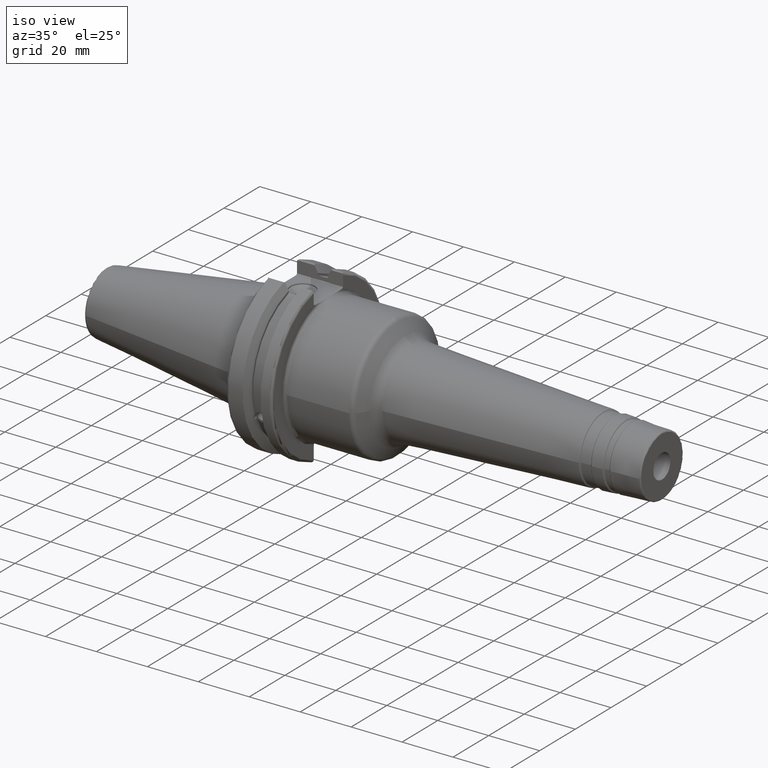
[diagram: clean part render]
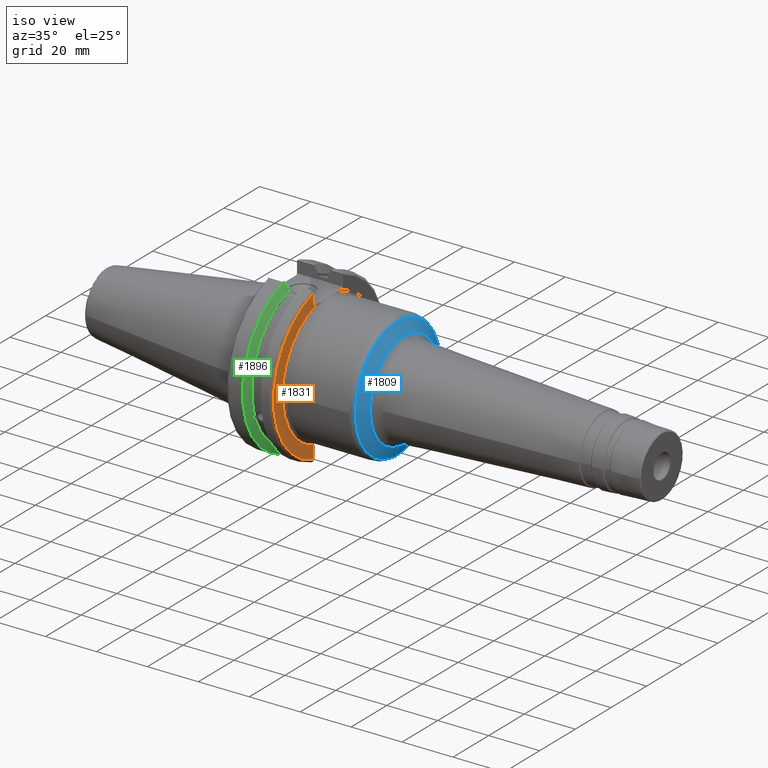
[diagram: same view with three faces highlighted in distinct colors, each labeled with its STEP entity id]
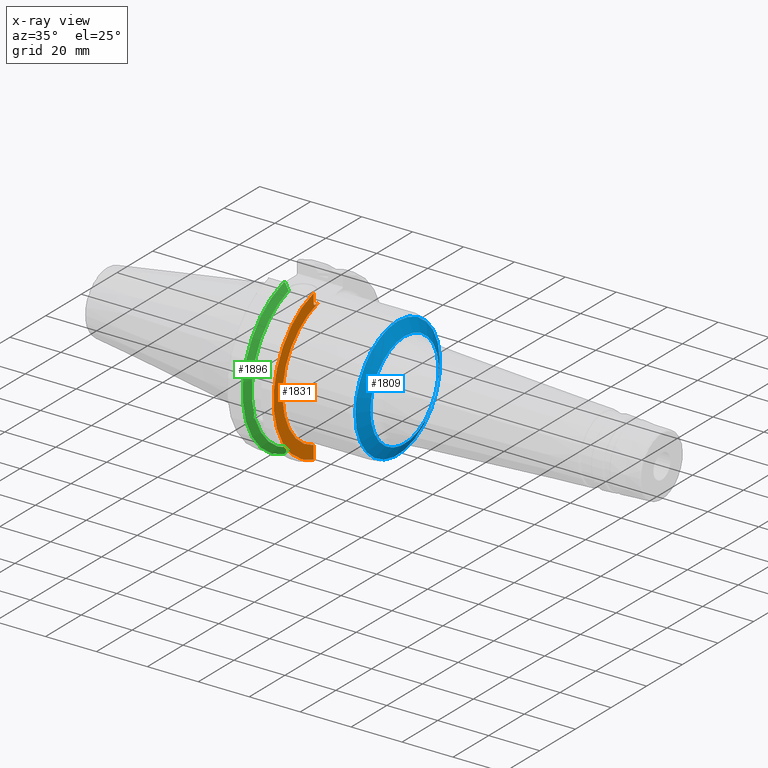
[diagram: x-ray of the same camera — body ghosted, the three highlighted faces saturated]
A machine part, iso view with three faces highlighted in distinct colors.
The next image is the same camera in x-ray (body ghosted, the three faces saturated) — at least one of them is partly hidden behind the body in this view.
Their STEP definitions:

[orange] entity #1831 — the highlighted planar face has unit normal (1, 0, 0).
#50=PLANE('',#2024);
#211=FACE_OUTER_BOUND('',#319,.T.);
#319=EDGE_LOOP('',(#1366,#1367,#1368,#1369,#1370,#1371));
#424=LINE('',#3061,#520);
#425=LINE('',#3063,#521);
#426=LINE('',#3065,#522);
#427=LINE('',#3068,#523);
#520=VECTOR('',#2383,10.);
#521=VECTOR('',#2384,10.);
#522=VECTOR('',#2385,10.);
#523=VECTOR('',#2388,10.);
#663=CIRCLE('',#2022,25.75);
#665=CIRCLE('',#2025,30.75);
#781=VERTEX_POINT('',#3023);
#783=VERTEX_POINT('',#3035);
#785=VERTEX_POINT('',#3060);
#786=VERTEX_POINT('',#3062);
#787=VERTEX_POINT('',#3064);
#788=VERTEX_POINT('',#3066);
#999=EDGE_CURVE('',#781,#783,#663,.T.);
#1003=EDGE_CURVE('',#781,#785,#424,.T.);
#1004=EDGE_CURVE('',#786,#785,#425,.T.);
#1005=EDGE_CURVE('',#786,#787,#426,.T.);
#1006=EDGE_CURVE('',#788,#787,#665,.T.);
#1007=EDGE_CURVE('',#788,#783,#427,.T.);
#1366=ORIENTED_EDGE('',*,*,#999,.F.);
#1367=ORIENTED_EDGE('',*,*,#1003,.T.);
#1368=ORIENTED_EDGE('',*,*,#1004,.F.);
#1369=ORIENTED_EDGE('',*,*,#1005,.T.);
#1370=ORIENTED_EDGE('',*,*,#1006,.F.);
#1371=ORIENTED_EDGE('',*,*,#1007,.T.);
#1831=ADVANCED_FACE('',(#211),#50,.T.);
#2022=AXIS2_PLACEMENT_3D('',#3036,#2377,#2378);
#2024=AXIS2_PLACEMENT_3D('',#3059,#2381,#2382);
#2025=AXIS2_PLACEMENT_3D('',#3067,#2386,#2387);
#2377=DIRECTION('center_axis',(1.,0.,0.));
#2378=DIRECTION('ref_axis',(0.,6.12323399573677E-17,1.));
#2381=DIRECTION('center_axis',(1.,0.,0.));
#2382=DIRECTION('ref_axis',(0.,0.,-1.));
#2383=DIRECTION('',(0.,-1.,0.));
#2384=DIRECTION('',(0.,0.70710678118655,-0.707106781186545));
#2385=DIRECTION('',(0.,0.,1.));
#2386=DIRECTION('center_axis',(-1.,0.,0.));
#2387=DIRECTION('ref_axis',(0.,-1.,1.60812264967664E-16));
#2388=DIRECTION('',(0.,0.,1.));
#3023=CARTESIAN_POINT('',(19.05,-6.16948133962654,25.));
#3035=CARTESIAN_POINT('',(19.05,-8.19,-24.4128326910254));
#3036=CARTESIAN_POINT('Origin',(19.05,0.,0.));
#3059=CARTESIAN_POINT('Origin',(19.05,0.,0.));
#3060=CARTESIAN_POINT('',(19.05,-7.69,25.));
#3061=CARTESIAN_POINT('',(19.05,0.,25.));
#3062=CARTESIAN_POINT('',(19.05,-8.19,25.5));
#3063=CARTESIAN_POINT('',(19.05,0.357500000000014,16.9525));
#3064=CARTESIAN_POINT('',(19.05,-8.19,29.6392712461019));
#3065=CARTESIAN_POINT('',(19.05,-8.19,12.5));
#3066=CARTESIAN_POINT('',(19.05,-8.19,-29.6392712461019));
#3067=CARTESIAN_POINT('Origin',(19.05,0.,0.));
#3068=CARTESIAN_POINT('',(19.05,-8.19,-11.3));

[blue] entity #1809 — the highlighted conical surface has half-angle 60 deg.
#189=FACE_OUTER_BOUND('',#296,.T.);
#296=EDGE_LOOP('',(#1238,#1239,#1240,#1241,#1242,#1243));
#414=LINE('',#2905,#510);
#510=VECTOR('',#2227,20.9953889641521);
#610=CIRCLE('',#1947,23.75);
#611=CIRCLE('',#1948,23.75);
#613=CIRCLE('',#1951,19.1216316443699);
#614=CIRCLE('',#1952,19.1216316443699);
#739=VERTEX_POINT('',#2896);
#740=VERTEX_POINT('',#2897);
#741=VERTEX_POINT('',#2902);
#742=VERTEX_POINT('',#2903);
#935=EDGE_CURVE('',#739,#740,#610,.T.);
#936=EDGE_CURVE('',#740,#739,#611,.T.);
#938=EDGE_CURVE('',#741,#742,#613,.T.);
#939=EDGE_CURVE('',#741,#740,#414,.T.);
#940=EDGE_CURVE('',#742,#741,#614,.T.);
#1238=ORIENTED_EDGE('',*,*,#938,.F.);
#1239=ORIENTED_EDGE('',*,*,#939,.T.);
#1240=ORIENTED_EDGE('',*,*,#935,.F.);
#1241=ORIENTED_EDGE('',*,*,#936,.F.);
#1242=ORIENTED_EDGE('',*,*,#939,.F.);
#1243=ORIENTED_EDGE('',*,*,#940,.F.);
#1782=CONICAL_SURFACE('',#1950,20.995388964152,1.0471975511966);
#1809=ADVANCED_FACE('',(#189),#1782,.T.);
#1947=AXIS2_PLACEMENT_3D('',#2898,#2217,#2218);
#1948=AXIS2_PLACEMENT_3D('',#2899,#2219,#2220);
#1950=AXIS2_PLACEMENT_3D('',#2901,#2223,#2224);
#1951=AXIS2_PLACEMENT_3D('',#2904,#2225,#2226);
#1952=AXIS2_PLACEMENT_3D('',#2906,#2228,#2229);
#2217=DIRECTION('center_axis',(-1.,0.,0.));
#2218=DIRECTION('ref_axis',(0.,-1.,3.06161699786838E-17));
#2219=DIRECTION('center_axis',(-1.,0.,0.));
#2220=DIRECTION('ref_axis',(0.,-1.,3.06161699786838E-17));
#2223=DIRECTION('center_axis',(-1.,0.,0.));
#2224=DIRECTION('ref_axis',(0.,1.,0.));
#2225=DIRECTION('center_axis',(1.,0.,0.));
#2226=DIRECTION('ref_axis',(0.,-1.,3.06161699786838E-17));
#2227=DIRECTION('',(-0.5,-0.866025403784438,-1.06057523872491E-16));
#2228=DIRECTION('center_axis',(1.,0.,0.));
#2229=DIRECTION('ref_axis',(0.,-1.,3.06161699786838E-17));
#2896=CARTESIAN_POINT('',(46.2418988846913,-2.90853614797496E-15,23.75));
#2897=CARTESIAN_POINT('',(46.2418988846913,-23.75,-2.90853614797496E-15));
#2898=CARTESIAN_POINT('Origin',(46.2418988846913,0.,-3.6356701849687E-15));
#2899=CARTESIAN_POINT('Origin',(46.2418988846913,0.,-3.6356701849687E-15));
#2901=CARTESIAN_POINT('Origin',(47.8322743077508,0.,0.));
#2902=CARTESIAN_POINT('',(48.9140886007231,-19.1216316443699,-2.34172449877523E-15));
#2903=CARTESIAN_POINT('',(48.9140886007231,-2.34172449877523E-15,19.1216316443699));
#2904=CARTESIAN_POINT('Origin',(48.9140886007231,0.,-2.92715562346904E-15));
#2905=CARTESIAN_POINT('',(47.8322743077508,-20.995388964152,-2.57119358918025E-15));
#2906=CARTESIAN_POINT('Origin',(48.9140886007231,0.,-2.92715562346904E-15));

[green] entity #1896 — the highlighted conical surface has half-angle 60 deg.
#24=(
BOUNDED_CURVE()
B_SPLINE_CURVE(2,(#3567,#3568,#3569),.UNSPECIFIED.,.F.,.F.)
B_SPLINE_CURVE_WITH_KNOTS((3,3),(0.,0.276549142797088),.UNSPECIFIED.)
CURVE()
GEOMETRIC_REPRESENTATION_ITEM()
RATIONAL_B_SPLINE_CURVE((1.,1.00095203903867,1.00031614444995))
REPRESENTATION_ITEM('')
);
#25=(
BOUNDED_CURVE()
B_SPLINE_CURVE(2,(#3579,#3580,#3581),.UNSPECIFIED.,.F.,.F.)
B_SPLINE_CURVE_WITH_KNOTS((3,3),(0.0550586467393311,0.331607789535851),
 .UNSPECIFIED.)
CURVE()
GEOMETRIC_REPRESENTATION_ITEM()
RATIONAL_B_SPLINE_CURVE((1.00031614445049,1.00095203904028,1.))
REPRESENTATION_ITEM('')
);
#26=(
BOUNDED_CURVE()
B_SPLINE_CURVE(2,(#3614,#3615,#3616),.UNSPECIFIED.,.F.,.F.)
B_SPLINE_CURVE_WITH_KNOTS((3,3),(0.,0.0639048713675838),.UNSPECIFIED.)
CURVE()
GEOMETRIC_REPRESENTATION_ITEM()
RATIONAL_B_SPLINE_CURVE((1.,1.00028444218292,1.00047644010588))
REPRESENTATION_ITEM('')
);
#27=(
BOUNDED_CURVE()
B_SPLINE_CURVE(2,(#3622,#3623,#3624),.UNSPECIFIED.,.F.,.F.)
B_SPLINE_CURVE_WITH_KNOTS((3,3),(0.329353533631213,0.393258405001024),
 .UNSPECIFIED.)
CURVE()
GEOMETRIC_REPRESENTATION_ITEM()
RATIONAL_B_SPLINE_CURVE((1.00047644010576,1.00028444218285,1.))
REPRESENTATION_ITEM('')
);
#129=B_SPLINE_CURVE_WITH_KNOTS('',3,(#3165,#3166,#3167,#3168,#3169,#3170,
#3171,#3172,#3173,#3174,#3175,#3176,#3177,#3178),.UNSPECIFIED.,.F.,.F.,
(4,2,2,2,2,2,4),(0.451995700189025,0.464547828547662,0.504528771685168,
0.544509714822673,0.584490657960178,0.624471601097683,0.637023729456319),
 .UNSPECIFIED.);
#276=FACE_OUTER_BOUND('',#394,.T.);
#394=EDGE_LOOP('',(#1728,#1729,#1730,#1731,#1732,#1733,#1734,#1735));
#681=CIRCLE('',#2068,28.9593772964944);
#704=CIRCLE('',#2126,31.75);
#716=CIRCLE('',#2159,28.9593772964944);
#809=VERTEX_POINT('',#3162);
#810=VERTEX_POINT('',#3164);
#827=VERTEX_POINT('',#3257);
#888=VERTEX_POINT('',#3564);
#889=VERTEX_POINT('',#3566);
#892=VERTEX_POINT('',#3578);
#896=VERTEX_POINT('',#3612);
#897=VERTEX_POINT('',#3618);
#1036=EDGE_CURVE('',#810,#809,#129,.T.);
#1060=EDGE_CURVE('',#810,#827,#681,.T.);
#1145=EDGE_CURVE('',#889,#888,#24,.T.);
#1151=EDGE_CURVE('',#892,#827,#25,.T.);
#1159=EDGE_CURVE('',#896,#888,#26,.T.);
#1161=EDGE_CURVE('',#896,#897,#704,.T.);
#1162=EDGE_CURVE('',#892,#897,#27,.T.);
#1193=EDGE_CURVE('',#889,#809,#716,.T.);
#1728=ORIENTED_EDGE('',*,*,#1036,.T.);
#1729=ORIENTED_EDGE('',*,*,#1193,.F.);
#1730=ORIENTED_EDGE('',*,*,#1145,.T.);
#1731=ORIENTED_EDGE('',*,*,#1159,.F.);
#1732=ORIENTED_EDGE('',*,*,#1161,.T.);
#1733=ORIENTED_EDGE('',*,*,#1162,.F.);
#1734=ORIENTED_EDGE('',*,*,#1151,.T.);
#1735=ORIENTED_EDGE('',*,*,#1060,.F.);
#1800=CONICAL_SURFACE('',#2158,30.3546886482472,1.0471975511966);
#1896=ADVANCED_FACE('',(#276),#1800,.T.);
#2068=AXIS2_PLACEMENT_3D('',#3258,#2491,#2492);
#2126=AXIS2_PLACEMENT_3D('',#3620,#2649,#2650);
#2158=AXIS2_PLACEMENT_3D('',#3713,#2726,#2727);
#2159=AXIS2_PLACEMENT_3D('',#3714,#2728,#2729);
#2491=DIRECTION('center_axis',(1.,0.,0.));
#2492=DIRECTION('ref_axis',(0.,0.,-1.));
#2649=DIRECTION('center_axis',(1.,0.,0.));
#2650=DIRECTION('ref_axis',(0.,0.,-1.));
#2726=DIRECTION('center_axis',(-1.,0.,0.));
#2727=DIRECTION('ref_axis',(0.,-1.,-1.22464679914735E-16));
#2728=DIRECTION('center_axis',(1.,0.,0.));
#2729=DIRECTION('ref_axis',(0.,0.,-1.));
#3162=CARTESIAN_POINT('',(9.2191,-27.4956274489925,-9.09043478536247));
#3164=CARTESIAN_POINT('',(9.21909999999999,-26.9060914640648,-10.7101715919071));
#3165=CARTESIAN_POINT('Ctrl Pts',(9.21909999999999,-26.9060914640648,-10.7101715919071));
#3166=CARTESIAN_POINT('Ctrl Pts',(9.20497959280038,-26.9406927482839,-10.6893765730703));
#3167=CARTESIAN_POINT('Ctrl Pts',(9.19150701821433,-26.9744191989197,-10.6676007180673));
#3168=CARTESIAN_POINT('Ctrl Pts',(9.13811855884095,-27.1113422433188,-10.5723885976054));
#3169=CARTESIAN_POINT('Ctrl Pts',(9.09998029158246,-27.2180531796526,-10.4801333026531));
#3170=CARTESIAN_POINT('Ctrl Pts',(9.04778935539424,-27.3968610665578,-10.2639559818059));
#3171=CARTESIAN_POINT('Ctrl Pts',(9.0341,-27.4684373304961,-10.139516340139));
#3172=CARTESIAN_POINT('Ctrl Pts',(9.0341,-27.559599249844,-9.8890510252165));
#3173=CARTESIAN_POINT('Ctrl Pts',(9.04778935539424,-27.5847569104121,-9.74771639360671));
#3174=CARTESIAN_POINT('Ctrl Pts',(9.09998029158246,-27.5867382255984,-9.46717946402648));
#3175=CARTESIAN_POINT('Ctrl Pts',(9.13811855884095,-27.5642934663232,-9.32791534028655));
#3176=CARTESIAN_POINT('Ctrl Pts',(9.19150701821433,-27.5206055003512,-9.16696618806878));
#3177=CARTESIAN_POINT('Ctrl Pts',(9.20497959280038,-27.5087667900418,-9.12860597076219));
#3178=CARTESIAN_POINT('Ctrl Pts',(9.21909999999999,-27.4956274489925,-9.09043478536247));
#3257=CARTESIAN_POINT('',(9.2191,-8.19,-27.7771386827498));
#3258=CARTESIAN_POINT('Origin',(9.2191,0.,0.));
#3564=CARTESIAN_POINT('',(7.88668530351255,-8.19,30.1755016258903));
#3566=CARTESIAN_POINT('',(9.2191,-8.19,27.7771386827498));
#3567=CARTESIAN_POINT('Ctrl Pts',(9.2191,-8.19,27.7771386827498));
#3568=CARTESIAN_POINT('Ctrl Pts',(8.58046356153227,-8.19,28.9303689539555));
#3569=CARTESIAN_POINT('Ctrl Pts',(7.88668530351255,-8.19,30.1755016258903));
#3578=CARTESIAN_POINT('',(7.88668530351256,-8.19,-30.1755016258903));
#3579=CARTESIAN_POINT('Ctrl Pts',(7.88668530351256,-8.19,-30.1755016258903));
#3580=CARTESIAN_POINT('Ctrl Pts',(8.5804635615239,-8.19,-28.9303689539705));
#3581=CARTESIAN_POINT('Ctrl Pts',(9.2191,-8.19,-27.7771386827498));
#3612=CARTESIAN_POINT('',(7.60793323092436,-8.67204822802685,30.5427254764662));
#3614=CARTESIAN_POINT('Ctrl Pts',(7.60793323092436,-8.67204822802685,30.5427254764662));
#3615=CARTESIAN_POINT('Ctrl Pts',(7.74899148121628,-8.42917748262643,30.3577067892629));
#3616=CARTESIAN_POINT('Ctrl Pts',(7.88668530351255,-8.19,30.1755016258903));
#3618=CARTESIAN_POINT('',(7.60793323092436,-8.67204822802685,-30.5427254764662));
#3620=CARTESIAN_POINT('Origin',(7.60793323092436,0.,0.));
#3622=CARTESIAN_POINT('Ctrl Pts',(7.88668530351256,-8.19,-30.1755016258903));
#3623=CARTESIAN_POINT('Ctrl Pts',(7.7489914812116,-8.42917748263465,-30.3577067892692));
#3624=CARTESIAN_POINT('Ctrl Pts',(7.60793323092436,-8.67204822802685,-30.5427254764662));
#3713=CARTESIAN_POINT('Origin',(8.41351661546217,0.,0.));
#3714=CARTESIAN_POINT('Origin',(9.2191,0.,0.));